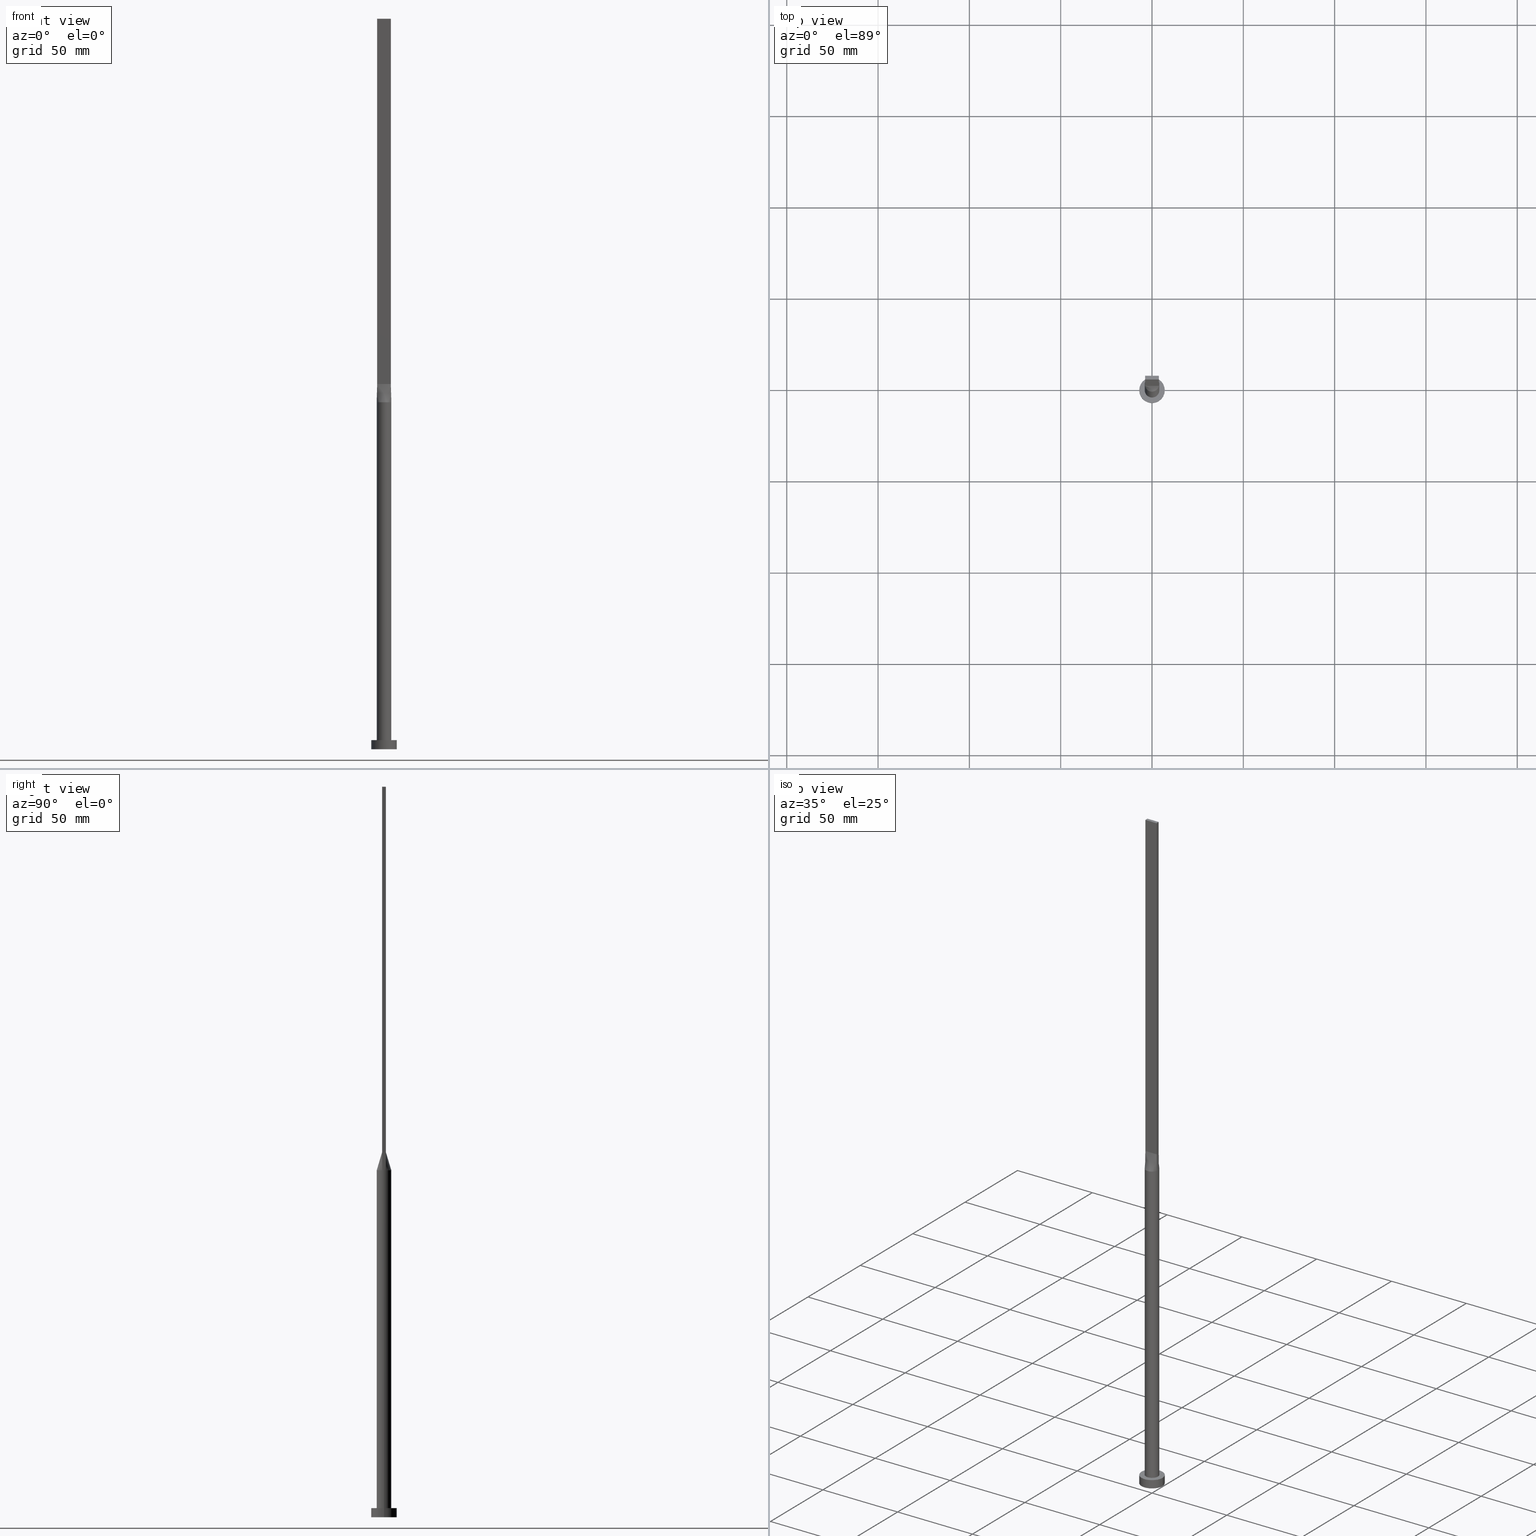
[diagram: canonical four-view strip — front | top / right | iso, engineering-drawing reading convention]
A machine part, canonical four-view strip (front | top / right | iso — engineering-drawing reading convention). The complete STEP part file that produces these views, byte-faithful:
ISO-10303-21;
HEADER;
FILE_DESCRIPTION (( 'STEP AP203' ),
    '1' );
FILE_NAME ('7f38.STEP',
    '2023-02-13T09:53:34',
    ( '' ),
    ( '' ),
    'SwSTEP 2.0',
    'SolidWorks 2019',
    '' );
FILE_SCHEMA (( 'CONFIG_CONTROL_DESIGN' ));
ENDSEC;

DATA;
#1 = PLANE ( 'NONE',  #343 ) ;
#2 = ORIENTED_EDGE ( 'NONE', *, *, #90, .F. ) ;
#3 = FACE_OUTER_BOUND ( 'NONE', #485, .T. ) ;
#4 = PERSON_AND_ORGANIZATION_ROLE ( 'creator' ) ;
#5 = DIRECTION ( 'NONE',  ( -1.000000000000000000, 0.000000000000000000, 0.000000000000000000 ) ) ;
#6 = CARTESIAN_POINT ( 'NONE',  ( 3.750000000000000000, 1.000000000000000000, 400.0000000000000000 ) ) ;
#7 = ORIENTED_EDGE ( 'NONE', *, *, #487, .T. ) ;
#8 = CARTESIAN_POINT ( 'NONE',  ( 3.781952206537765981, -1.341853921743404232, 190.0000000000000568 ) ) ;
#9 = ORIENTED_EDGE ( 'NONE', *, *, #189, .T. ) ;
#10 = DIRECTION ( 'NONE',  ( 0.000000000000000000, 0.000000000000000000, 1.000000000000000000 ) ) ;
#11 = CC_DESIGN_DATE_AND_TIME_ASSIGNMENT ( #171, #42, ( #199 ) ) ;
#12 = DIRECTION ( 'NONE',  ( -0.000000000000000000, -0.000000000000000000, -1.000000000000000000 ) ) ;
#13 = CARTESIAN_POINT ( 'NONE',  ( 4.000000000000000000, -0.3494497975066829798, 190.0000000000000000 ) ) ;
#14 = EDGE_LOOP ( 'NONE', ( #222, #9, #397, #380 ) ) ;
#15 = VECTOR ( 'NONE', #444, 1000.000000000000000 ) ;
#16 = LINE ( 'NONE', #434, #26 ) ;
#17 = COORDINATED_UNIVERSAL_TIME_OFFSET ( 1, 0, .AHEAD. ) ;
#18 = EDGE_LOOP ( 'NONE', ( #67, #551, #515, #251, #283 ) ) ;
#19 = VERTEX_POINT ( 'NONE', #92 ) ;
#20 = EDGE_CURVE ( 'NONE', #579, #425, #419, .T. ) ;
#21 = CARTESIAN_POINT ( 'NONE',  ( 3.009488128496037085, 2.672487015486669115, 190.0000000000000284 ) ) ;
#22 = EDGE_LOOP ( 'NONE', ( #97, #307, #469, #63 ) ) ;
#23 = CARTESIAN_POINT ( 'NONE',  ( 0.3124999999999993339, 1.000000000000000000, 200.0000000000000284 ) ) ;
#24 = APPROVAL_PERSON_ORGANIZATION ( #534, #501, #130 ) ;
#25 = VERTEX_POINT ( 'NONE', #497 ) ;
#26 = VECTOR ( 'NONE', #436, 1000.000000000000000 ) ;
#27 = LINE ( 'NONE', #386, #452 ) ;
#28 = LOCAL_TIME ( 10, 53, 34.00000000000000000, #36 ) ;
#29 = DIRECTION ( 'NONE',  ( -0.000000000000000000, 1.000000000000000000, -0.000000000000000000 ) ) ;
#30 = APPROVAL ( #482, 'NEUR�EN�' ) ;
#31 = CARTESIAN_POINT ( 'NONE',  ( 1.249999999999999334, 1.000000000000000000, 200.0000000000000284 ) ) ;
#32 = EDGE_CURVE ( 'NONE', #19, #69, #137, .T. ) ;
#33 = VECTOR ( 'NONE', #404, 1000.000000000000114 ) ;
#34 = FACE_OUTER_BOUND ( 'NONE', #321, .T. ) ;
#35 = CARTESIAN_POINT ( 'NONE',  ( -3.124999999999999112, -0.9999999999999991118, 200.0000000000000000 ) ) ;
#36 = COORDINATED_UNIVERSAL_TIME_OFFSET ( 1, 0, .AHEAD. ) ;
#37 = CARTESIAN_POINT ( 'NONE',  ( 0.000000000000000000, 0.000000000000000000, 0.000000000000000000 ) ) ;
#38 = APPROVAL_ROLE ( '' ) ;
#39 = VECTOR ( 'NONE', #29, 1000.000000000000000 ) ;
#40 = ADVANCED_FACE ( 'NONE', ( #151, #329 ), #1, .T. ) ;
#41 = PRODUCT_DEFINITION_FORMATION_WITH_SPECIFIED_SOURCE ( 'LIBOVOLN�', '', #49, .NOT_KNOWN. ) ;
#42 = DATE_TIME_ROLE ( 'creation_date' ) ;
#43 = ADVANCED_FACE ( 'NONE', ( #176 ), #230, .T. ) ;
#44 = CARTESIAN_POINT ( 'NONE',  ( 7.000000000000000000, 8.572527594031473190E-16, 0.000000000000000000 ) ) ;
#45 = ORIENTED_EDGE ( 'NONE', *, *, #529, .F. ) ;
#46 = ORIENTED_EDGE ( 'NONE', *, *, #259, .T. ) ;
#47 = EDGE_CURVE ( 'NONE', #93, #493, #83, .T. ) ;
#48 = DIRECTION ( 'NONE',  ( -1.000000000000000000, 0.000000000000000000, 0.000000000000000000 ) ) ;
#49 = PRODUCT ( '7f38', '7f38', '', ( #311 ) ) ;
#50 = ORIENTED_EDGE ( 'NONE', *, *, #529, .T. ) ;
#51 = DIRECTION ( 'NONE',  ( -0.01149316269309399140, 0.003064843384825013256, 0.9999292544707033548 ) ) ;
#52 = ORIENTED_EDGE ( 'NONE', *, *, #265, .T. ) ;
#53 = CARTESIAN_POINT ( 'NONE',  ( 3.653499896451230633, -1.673258289339059068, 190.0000000000000284 ) ) ;
#54 = CARTESIAN_POINT ( 'NONE',  ( -3.750000000000000000, 1.000000000000000000, 200.0000000000000000 ) ) ;
#55 = CIRCLE ( 'NONE', #209, 4.000000000000000000 ) ;
#56 = AXIS2_PLACEMENT_3D ( 'NONE', #577, #391, #213 ) ;
#57 = CARTESIAN_POINT ( 'NONE',  ( -3.750000000000000000, 1.000000000000000000, 200.0000000000000000 ) ) ;
#58 = COORDINATED_UNIVERSAL_TIME_OFFSET ( 1, 0, .AHEAD. ) ;
#59 = CARTESIAN_POINT ( 'NONE',  ( 3.781952206537764205, 1.341853921743403788, 190.0000000000000000 ) ) ;
#60 = DIRECTION ( 'NONE',  ( 1.000000000000000000, 0.000000000000000000, 0.000000000000000000 ) ) ;
#61 = FACE_OUTER_BOUND ( 'NONE', #18, .T. ) ;
#62 = CARTESIAN_POINT ( 'NONE',  ( 1.562500000000001332, -0.9999999999999995559, 200.0000000000000000 ) ) ;
#63 = ORIENTED_EDGE ( 'NONE', *, *, #389, .T. ) ;
#64 = CARTESIAN_POINT ( 'NONE',  ( -3.750000000000000000, 1.000000000000000000, 200.0000000000000000 ) ) ;
#65 = ORIENTED_EDGE ( 'NONE', *, *, #295, .T. ) ;
#66 = CARTESIAN_POINT ( 'NONE',  ( -3.781952206537765537, 1.341853921743403788, 190.0000000000000568 ) ) ;
#67 = ORIENTED_EDGE ( 'NONE', *, *, #580, .T. ) ;
#68 = DIRECTION ( 'NONE',  ( -0.000000000000000000, -0.000000000000000000, -1.000000000000000000 ) ) ;
#69 = VERTEX_POINT ( 'NONE', #54 ) ;
#70 = SHAPE_DEFINITION_REPRESENTATION ( #263, #516 ) ;
#71 = ADVANCED_FACE ( 'NONE', ( #410 ), #541, .T. ) ;
#72 = CARTESIAN_POINT ( 'NONE',  ( 3.267840578657193795, 2.338604872288698289, 190.0000000000000568 ) ) ;
#73 = LINE ( 'NONE', #198, #127 ) ;
#74 = LINE ( 'NONE', #517, #511 ) ;
#75 = CC_DESIGN_APPROVAL ( #30, ( #199 ) ) ;
#76 = VECTOR ( 'NONE', #12, 1000.000000000000000 ) ;
#77 = CARTESIAN_POINT ( 'NONE',  ( -3.864939758404985604, -1.030650602241328428, 190.0000000000000000 ) ) ;
#78 = CIRCLE ( 'NONE', #280, 4.000000000000000000 ) ;
#79 = CARTESIAN_POINT ( 'NONE',  ( -0.5121855420560009753, 4.000000000000000888, 190.0000000000000284 ) ) ;
#80 = LINE ( 'NONE', #64, #499 ) ;
#81 = EDGE_CURVE ( 'NONE', #219, #538, #297, .T. ) ;
#82 = FACE_OUTER_BOUND ( 'NONE', #272, .T. ) ;
#83 = CIRCLE ( 'NONE', #87, 4.000000000000000000 ) ;
#84 = CARTESIAN_POINT ( 'NONE',  ( 1.023074425454087555, -3.898373771260455811, 190.0000000000000000 ) ) ;
#85 = CARTESIAN_POINT ( 'NONE',  ( -3.750000000000000000, -0.9999999999999991118, 200.0000000000000000 ) ) ;
#86 = CALENDAR_DATE ( 2023, 13, 2 ) ;
#87 = AXIS2_PLACEMENT_3D ( 'NONE', #450, #542, #281 ) ;
#88 = CYLINDRICAL_SURFACE ( 'NONE', #481, 7.000000000000000000 ) ;
#89 = DIRECTION ( 'NONE',  ( 1.000000000000000000, 0.000000000000000000, -0.000000000000000000 ) ) ;
#90 = EDGE_CURVE ( 'NONE', #425, #197, #155, .T. ) ;
#91 = PLANE ( 'NONE',  #384 ) ;
#92 = CARTESIAN_POINT ( 'NONE',  ( -3.865236553917747120, 1.030730781768519622, 190.0000000000000000 ) ) ;
#93 = VERTEX_POINT ( 'NONE', #296 ) ;
#94 = DIRECTION ( 'NONE',  ( -0.01149316269309394803, -0.003064843384824991138, 0.9999292544707033548 ) ) ;
#95 = ORIENTED_EDGE ( 'NONE', *, *, #339, .F. ) ;
#96 = CARTESIAN_POINT ( 'NONE',  ( -1.023074425454088221, 3.898373771260455811, 190.0000000000000000 ) ) ;
#97 = ORIENTED_EDGE ( 'NONE', *, *, #124, .T. ) ;
#98 = DIRECTION ( 'NONE',  ( 0.000000000000000000, 0.000000000000000000, 1.000000000000000000 ) ) ;
#99 = CARTESIAN_POINT ( 'NONE',  ( 0.000000000000000000, 0.000000000000000000, 5.000000000000000000 ) ) ;
#100 = SECURITY_CLASSIFICATION ( '', '', #363 ) ;
#101 = CARTESIAN_POINT ( 'NONE',  ( 1.023074425454087999, 3.898373771260456255, 190.0000000000000284 ) ) ;
#102 = ORIENTED_EDGE ( 'NONE', *, *, #573, .T. ) ;
#103 = CARTESIAN_POINT ( 'NONE',  ( 0.000000000000000000, 0.000000000000000000, 190.0000000000000000 ) ) ;
#104 = CARTESIAN_POINT ( 'NONE',  ( 0.000000000000000000, 0.000000000000000000, 5.000000000000000000 ) ) ;
#105 = CARTESIAN_POINT ( 'NONE',  ( 0.000000000000000000, 0.000000000000000000, 190.0000000000000000 ) ) ;
#106 = VERTEX_POINT ( 'NONE', #523 ) ;
#107 = CARTESIAN_POINT ( 'NONE',  ( -3.750000000000000000, 1.000000000000000000, 400.0000000000000000 ) ) ;
#108 = CARTESIAN_POINT ( 'NONE',  ( -3.009488128496037529, 2.672487015486668671, 189.9999999999999716 ) ) ;
#109 = PERSON ( 'NEUR�EN�', 'NEUR�EN�', 'NEUR�EN�', ('NEUR�EN�'), ('NEUR�EN�'), ('NEUR�EN�') ) ;
#110 = CARTESIAN_POINT ( 'NONE',  ( 0.000000000000000000, 0.000000000000000000, 190.0000000000000000 ) ) ;
#111 = ORIENTED_EDGE ( 'NONE', *, *, #112, .T. ) ;
#112 = EDGE_CURVE ( 'NONE', #548, #106, #467, .T. ) ;
#113 = DESIGN_CONTEXT ( 'detailed design', #483, 'design' ) ;
#114 = DIRECTION ( 'NONE',  ( -0.000000000000000000, -0.000000000000000000, -1.000000000000000000 ) ) ;
#115 = CC_DESIGN_PERSON_AND_ORGANIZATION_ASSIGNMENT ( #306, #264, ( #199 ) ) ;
#116 = CARTESIAN_POINT ( 'NONE',  ( -3.653499896451231521, 1.673258289339058180, 190.0000000000000284 ) ) ;
#117 = VECTOR ( 'NONE', #387, 1000.000000000000000 ) ;
#118 = CARTESIAN_POINT ( 'NONE',  ( 7.000000000000000000, 8.572527594031473190E-16, 5.000000000000000000 ) ) ;
#119 = CARTESIAN_POINT ( 'NONE',  ( -3.750000000000000000, 1.000000000000000000, 200.0000000000000000 ) ) ;
#120 = LOCAL_TIME ( 10, 53, 34.00000000000000000, #17 ) ;
#121 = CARTESIAN_POINT ( 'NONE',  ( -2.187499999999999112, -0.9999999999999993339, 200.0000000000000000 ) ) ;
#122 = ADVANCED_FACE ( 'NONE', ( #249 ), #254, .F. ) ;
#123 = CARTESIAN_POINT ( 'NONE',  ( -1.940702937457744692, -3.532374760555929250, 190.0000000000000000 ) ) ;
#124 = EDGE_CURVE ( 'NONE', #465, #579, #158, .T. ) ;
#125 = DIRECTION ( 'NONE',  ( 1.000000000000000000, 0.000000000000000000, -0.000000000000000000 ) ) ;
#126 = CARTESIAN_POINT ( 'NONE',  ( -1.023074425454088887, -3.898373771260456255, 190.0000000000000284 ) ) ;
#127 = VECTOR ( 'NONE', #68, 1000.000000000000000 ) ;
#128 = VECTOR ( 'NONE', #256, 1000.000000000000000 ) ;
#129 = APPROVAL_DATE_TIME ( #215, #30 ) ;
#130 = APPROVAL_ROLE ( '' ) ;
#131 = LINE ( 'NONE', #362, #76 ) ;
#132 = EDGE_CURVE ( 'NONE', #425, #147, #74, .T. ) ;
#133 = ORIENTED_EDGE ( 'NONE', *, *, #81, .F. ) ;
#134 = CARTESIAN_POINT ( 'NONE',  ( 3.864939758404985604, -1.030650602241328873, 190.0000000000000000 ) ) ;
#135 = ORIENTED_EDGE ( 'NONE', *, *, #555, .F. ) ;
#136 = CARTESIAN_POINT ( 'NONE',  ( -3.864939758404985160, 1.030650602241329317, 190.0000000000000000 ) ) ;
#137 = LINE ( 'NONE', #375, #33 ) ;
#138 = DIRECTION ( 'NONE',  ( 0.000000000000000000, 0.000000000000000000, 1.000000000000000000 ) ) ;
#139 = CARTESIAN_POINT ( 'NONE',  ( 0.000000000000000000, 0.000000000000000000, 5.000000000000000000 ) ) ;
#140 = DATE_AND_TIME ( #409, #120 ) ;
#141 = VERTEX_POINT ( 'NONE', #430 ) ;
#142 = CARTESIAN_POINT ( 'NONE',  ( 3.750000000000000000, -0.9999999999999997780, 400.0000000000000000 ) ) ;
#143 = ORIENTED_EDGE ( 'NONE', *, *, #544, .F. ) ;
#144 = EDGE_CURVE ( 'NONE', #147, #548, #568, .T. ) ;
#145 = DIRECTION ( 'NONE',  ( 1.000000000000000000, 0.000000000000000000, 0.000000000000000000 ) ) ;
#146 = LOCAL_TIME ( 10, 53, 34.00000000000000000, #58 ) ;
#147 = VERTEX_POINT ( 'NONE', #85 ) ;
#148 = CARTESIAN_POINT ( 'NONE',  ( -3.750000000000000000, 1.000000000000000000, 400.0000000000000000 ) ) ;
#149 = CARTESIAN_POINT ( 'NONE',  ( 2.346407003458400808, 3.270103945996944983, 190.0000000000000284 ) ) ;
#150 = ORIENTED_EDGE ( 'NONE', *, *, #437, .T. ) ;
#151 = FACE_BOUND ( 'NONE', #269, .T. ) ;
#152 = DIRECTION ( 'NONE',  ( 1.000000000000000000, -6.217248937900876626E-15, 0.000000000000000000 ) ) ;
#153 = ORIENTED_EDGE ( 'NONE', *, *, #124, .F. ) ;
#154 = PLANE ( 'NONE',  #246 ) ;
#155 = LINE ( 'NONE', #512, #371 ) ;
#156 = ADVANCED_FACE ( 'NONE', ( #34 ), #402, .T. ) ;
#157 = CARTESIAN_POINT ( 'NONE',  ( 3.750000000000000000, -1.000000000000000000, 200.0000000000000000 ) ) ;
#158 = LINE ( 'NONE', #507, #175 ) ;
#159 = AXIS2_PLACEMENT_3D ( 'NONE', #581, #358, #177 ) ;
#160 = CARTESIAN_POINT ( 'NONE',  ( 2.499999999999999112, 1.000000000000000000, 200.0000000000000000 ) ) ;
#161 = CARTESIAN_POINT ( 'NONE',  ( -2.500000000000000444, 1.000000000000000000, 200.0000000000000000 ) ) ;
#162 = DIRECTION ( 'NONE',  ( -0.000000000000000000, -0.000000000000000000, -1.000000000000000000 ) ) ;
#163 = ORIENTED_EDGE ( 'NONE', *, *, #81, .T. ) ;
#164 = LINE ( 'NONE', #527, #475 ) ;
#165 = CARTESIAN_POINT ( 'NONE',  ( -3.267840578657194239, -2.338604872288696956, 190.0000000000000568 ) ) ;
#166 = APPLICATION_PROTOCOL_DEFINITION ( 'international standard', 'config_control_design', 1994, #459 ) ;
#167 = EDGE_CURVE ( 'NONE', #237, #276, #309, .T. ) ;
#168 = VECTOR ( 'NONE', #51, 1000.000000000000114 ) ;
#169 = CC_DESIGN_APPROVAL ( #435, ( #100 ) ) ;
#170 = CARTESIAN_POINT ( 'NONE',  ( -3.653499896451231521, -1.673258289339057514, 189.9999999999999716 ) ) ;
#171 = DATE_AND_TIME ( #393, #552 ) ;
#172 = DIRECTION ( 'NONE',  ( -1.000000000000000000, 0.000000000000000000, 0.000000000000000000 ) ) ;
#173 = CALENDAR_DATE ( 2023, 13, 2 ) ;
#174 = CARTESIAN_POINT ( 'NONE',  ( 0.000000000000000000, 0.000000000000000000, 0.000000000000000000 ) ) ;
#175 = VECTOR ( 'NONE', #474, 1000.000000000000000 ) ;
#176 = FACE_OUTER_BOUND ( 'NONE', #271, .T. ) ;
#177 = DIRECTION ( 'NONE',  ( 1.000000000000000000, 0.000000000000000000, 0.000000000000000000 ) ) ;
#178 = ORIENTED_EDGE ( 'NONE', *, *, #495, .F. ) ;
#179 = CARTESIAN_POINT ( 'NONE',  ( 1.940702937457743360, -3.532374760555930582, 190.0000000000000284 ) ) ;
#180 = PLANE ( 'NONE',  #533 ) ;
#181 = EDGE_CURVE ( 'NONE', #364, #106, #239, .T. ) ;
#182 = ORIENTED_EDGE ( 'NONE', *, *, #478, .T. ) ;
#183 = CARTESIAN_POINT ( 'NONE',  ( -3.953459813730019423, 0.6987003947724497177, 189.9999999999999716 ) ) ;
#184 = PERSON_AND_ORGANIZATION_ROLE ( 'design_supplier' ) ;
#185 = DIRECTION ( 'NONE',  ( 1.000000000000000000, 0.000000000000000000, 0.000000000000000000 ) ) ;
#186 = VECTOR ( 'NONE', #94, 1000.000000000000114 ) ;
#187 = CARTESIAN_POINT ( 'NONE',  ( 3.009488128496037085, 2.672487015486669115, 190.0000000000000284 ) ) ;
#188 = ORIENTED_EDGE ( 'NONE', *, *, #144, .T. ) ;
#189 = EDGE_CURVE ( 'NONE', #326, #237, #460, .T. ) ;
#190 = ORIENTED_EDGE ( 'NONE', *, *, #47, .F. ) ;
#191 = DIRECTION ( 'NONE',  ( 0.000000000000000000, -1.000000000000000000, 0.000000000000000000 ) ) ;
#192 = FACE_OUTER_BOUND ( 'NONE', #241, .T. ) ;
#193 = ORIENTED_EDGE ( 'NONE', *, *, #555, .T. ) ;
#194 = ADVANCED_FACE ( 'NONE', ( #3 ), #316, .T. ) ;
#195 = CARTESIAN_POINT ( 'NONE',  ( -3.009488128496037529, 2.672487015486668671, 189.9999999999999716 ) ) ;
#196 = CARTESIAN_POINT ( 'NONE',  ( 3.267840578657193795, 2.338604872288698289, 190.0000000000000568 ) ) ;
#197 = VERTEX_POINT ( 'NONE', #489 ) ;
#198 = CARTESIAN_POINT ( 'NONE',  ( -4.000000000000000000, 0.000000000000000000, 190.0000000000000000 ) ) ;
#199 = PRODUCT_DEFINITION ( 'NEZN�M�', '', #41, #113 ) ;
#200 = DIRECTION ( 'NONE',  ( 1.000000000000000000, 0.000000000000000000, -0.000000000000000000 ) ) ;
#201 = CARTESIAN_POINT ( 'NONE',  ( 3.864939758404985160, 1.030650602241328873, 190.0000000000000000 ) ) ;
#202 = CARTESIAN_POINT ( 'NONE',  ( -1.023074425454088221, 3.898373771260455811, 190.0000000000000000 ) ) ;
#203 = LINE ( 'NONE', #471, #128 ) ;
#204 = LOCAL_TIME ( 10, 53, 34.00000000000000000, #396 ) ;
#205 = CARTESIAN_POINT ( 'NONE',  ( -3.750000000000000000, -0.9999999999999991118, 200.0000000000000000 ) ) ;
#206 = CARTESIAN_POINT ( 'NONE',  ( 1.023074425454087999, 3.898373771260456255, 190.0000000000000284 ) ) ;
#207 = DIRECTION ( 'NONE',  ( -0.01149316269309399140, -0.003064843384825013256, -0.9999292544707033548 ) ) ;
#208 = CARTESIAN_POINT ( 'NONE',  ( -3.437499999999999556, -0.9999999999999991118, 200.0000000000000000 ) ) ;
#209 = AXIS2_PLACEMENT_3D ( 'NONE', #448, #284, #408 ) ;
#210 = CARTESIAN_POINT ( 'NONE',  ( -2.346407003458402141, -3.270103945996943651, 190.0000000000000284 ) ) ;
#211 = ADVANCED_FACE ( 'NONE', ( #535 ), #88, .T. ) ;
#212 = CARTESIAN_POINT ( 'NONE',  ( 0.6250000000000017764, -0.9999999999999995559, 200.0000000000000000 ) ) ;
#213 = DIRECTION ( 'NONE',  ( 1.000000000000000000, 0.000000000000000000, 0.000000000000000000 ) ) ;
#214 = AXIS2_PLACEMENT_3D ( 'NONE', #110, #463, #299 ) ;
#215 = DATE_AND_TIME ( #86, #28 ) ;
#216 = AXIS2_PLACEMENT_3D ( 'NONE', #105, #376, #152 ) ;
#217 = CARTESIAN_POINT ( 'NONE',  ( -3.864939758404985604, -1.030650602241328206, 190.0000000000000000 ) ) ;
#218 = APPROVAL_STATUS ( 'not_yet_approved' ) ;
#219 = VERTEX_POINT ( 'NONE', #545 ) ;
#220 = CARTESIAN_POINT ( 'NONE',  ( 3.125000000000000444, -0.9999999999999995559, 200.0000000000000000 ) ) ;
#221 = ORIENTED_EDGE ( 'NONE', *, *, #359, .F. ) ;
#222 = ORIENTED_EDGE ( 'NONE', *, *, #478, .F. ) ;
#223 = ADVANCED_FACE ( 'NONE', ( #441 ), #413, .T. ) ;
#224 = DIRECTION ( 'NONE',  ( 1.000000000000000000, 0.000000000000000000, -0.000000000000000000 ) ) ;
#225 = DIRECTION ( 'NONE',  ( 0.000000000000000000, 0.000000000000000000, 1.000000000000000000 ) ) ;
#226 = ORIENTED_EDGE ( 'NONE', *, *, #47, .T. ) ;
#227 = DIRECTION ( 'NONE',  ( -0.000000000000000000, -0.000000000000000000, -1.000000000000000000 ) ) ;
#228 = AXIS2_PLACEMENT_3D ( 'NONE', #139, #492, #273 ) ;
#229 = VECTOR ( 'NONE', #335, 1000.000000000000000 ) ;
#230 = CYLINDRICAL_SURFACE ( 'NONE', #549, 7.000000000000000000 ) ;
#231 = CARTESIAN_POINT ( 'NONE',  ( 3.807469879202492802, -1.015325301120664214, 195.0000000000000000 ) ) ;
#232 = ORIENTED_EDGE ( 'NONE', *, *, #32, .F. ) ;
#233 = CARTESIAN_POINT ( 'NONE',  ( 3.009488128496036641, -2.672487015486668671, 189.9999999999999716 ) ) ;
#234 = APPROVAL_STATUS ( 'not_yet_approved' ) ;
#235 = ORIENTED_EDGE ( 'NONE', *, *, #508, .F. ) ;
#236 = CARTESIAN_POINT ( 'NONE',  ( 0.000000000000000000, 0.000000000000000000, 190.0000000000000000 ) ) ;
#237 = VERTEX_POINT ( 'NONE', #44 ) ;
#238 = MANIFOLD_SOLID_BREP ( 'P�idat vysunut�m5', #473 ) ;
#239 = LINE ( 'NONE', #486, #186 ) ;
#240 = CALENDAR_DATE ( 2023, 13, 2 ) ;
#241 = EDGE_LOOP ( 'NONE', ( #188, #556, #2, #446 ) ) ;
#242 = VECTOR ( 'NONE', #274, 1000.000000000000000 ) ;
#243 = ORIENTED_EDGE ( 'NONE', *, *, #580, .F. ) ;
#244 = CARTESIAN_POINT ( 'NONE',  ( -3.749999999999999556, 0.6666666666666668517, 200.0000000000000000 ) ) ;
#245 = CARTESIAN_POINT ( 'NONE',  ( 1.562499999999999112, 1.000000000000000000, 200.0000000000000284 ) ) ;
#246 = AXIS2_PLACEMENT_3D ( 'NONE', #426, #332, #472 ) ;
#247 = CARTESIAN_POINT ( 'NONE',  ( 3.749999999999999556, -0.6666666666666664076, 200.0000000000000000 ) ) ;
#248 = ORIENTED_EDGE ( 'NONE', *, *, #295, .F. ) ;
#249 = FACE_OUTER_BOUND ( 'NONE', #312, .T. ) ;
#250 =( NAMED_UNIT ( * ) SI_UNIT ( $, .STERADIAN. ) SOLID_ANGLE_UNIT ( ) );
#251 = ORIENTED_EDGE ( 'NONE', *, *, #112, .F. ) ;
#252 = CARTESIAN_POINT ( 'NONE',  ( 0.6249999999999993339, 1.000000000000000000, 200.0000000000000284 ) ) ;
#253 =( NAMED_UNIT ( * ) PLANE_ANGLE_UNIT ( ) SI_UNIT ( $, .RADIAN. ) );
#254 = PLANE ( 'NONE',  #522 ) ;
#255 = EDGE_CURVE ( 'NONE', #462, #326, #554, .T. ) ;
#256 = DIRECTION ( 'NONE',  ( -0.000000000000000000, -0.000000000000000000, -1.000000000000000000 ) ) ;
#257 = DIRECTION ( 'NONE',  ( -0.000000000000000000, -0.000000000000000000, -1.000000000000000000 ) ) ;
#258 = CARTESIAN_POINT ( 'NONE',  ( 0.5121855420560009753, 4.000000000000000888, 190.0000000000000000 ) ) ;
#259 = EDGE_CURVE ( 'NONE', #276, #237, #303, .T. ) ;
#260 = PLANE ( 'NONE',  #572 ) ;
#261 = PERSON_AND_ORGANIZATION ( #109, #304 ) ;
#262 = DIRECTION ( 'NONE',  ( -1.000000000000000000, 0.000000000000000000, 0.000000000000000000 ) ) ;
#263 = PRODUCT_DEFINITION_SHAPE ( 'NONE', 'NONE',  #199 ) ;
#264 = PERSON_AND_ORGANIZATION_ROLE ( 'creator' ) ;
#265 = EDGE_CURVE ( 'NONE', #579, #69, #131, .T. ) ;
#266 = VECTOR ( 'NONE', #207, 1000.000000000000114 ) ;
#267 = ORIENTED_EDGE ( 'NONE', *, *, #20, .F. ) ;
#268 = CARTESIAN_POINT ( 'NONE',  ( 0.000000000000000000, 0.000000000000000000, 5.000000000000000000 ) ) ;
#269 = EDGE_LOOP ( 'NONE', ( #248, #190 ) ) ;
#270 = CC_DESIGN_DATE_AND_TIME_ASSIGNMENT ( #442, #314, ( #100 ) ) ;
#271 = EDGE_LOOP ( 'NONE', ( #417, #445, #491, #46 ) ) ;
#272 = EDGE_LOOP ( 'NONE', ( #336, #451 ) ) ;
#273 = DIRECTION ( 'NONE',  ( 1.000000000000000000, 0.000000000000000000, 0.000000000000000000 ) ) ;
#274 = DIRECTION ( 'NONE',  ( 0.000000000000000000, -1.000000000000000000, 0.000000000000000000 ) ) ;
#275 = CARTESIAN_POINT ( 'NONE',  ( -3.653499896451231521, 1.673258289339058180, 190.0000000000000284 ) ) ;
#276 = VERTEX_POINT ( 'NONE', #537 ) ;
#277 = CC_DESIGN_SECURITY_CLASSIFICATION ( #100, ( #41 ) ) ;
#278 = FACE_OUTER_BOUND ( 'NONE', #574, .T. ) ;
#279 = APPROVAL_DATE_TIME ( #536, #501 ) ;
#280 = AXIS2_PLACEMENT_3D ( 'NONE', #411, #10, #60 ) ;
#281 = DIRECTION ( 'NONE',  ( 1.000000000000000000, 0.000000000000000000, 0.000000000000000000 ) ) ;
#282 = CARTESIAN_POINT ( 'NONE',  ( -3.865236553917747120, 1.030730781768519622, 190.0000000000000000 ) ) ;
#283 = ORIENTED_EDGE ( 'NONE', *, *, #487, .F. ) ;
#284 = DIRECTION ( 'NONE',  ( 0.000000000000000000, 0.000000000000000000, 1.000000000000000000 ) ) ;
#285 = ORIENTED_EDGE ( 'NONE', *, *, #382, .T. ) ;
#286 = CARTESIAN_POINT ( 'NONE',  ( -1.940702937457743138, 3.532374760555930582, 190.0000000000000284 ) ) ;
#287 = CARTESIAN_POINT ( 'NONE',  ( -1.940702937457743138, 3.532374760555930582, 190.0000000000000284 ) ) ;
#288 = CARTESIAN_POINT ( 'NONE',  ( -3.267840578657194239, 2.338604872288698289, 190.0000000000000284 ) ) ;
#289 = ORIENTED_EDGE ( 'NONE', *, *, #265, .F. ) ;
#290 = CARTESIAN_POINT ( 'NONE',  ( -3.781952206537765537, 1.341853921743403788, 190.0000000000000568 ) ) ;
#291 = CARTESIAN_POINT ( 'NONE',  ( 3.953459813730020311, 0.6987003947724492736, 190.0000000000000000 ) ) ;
#292 = CARTESIAN_POINT ( 'NONE',  ( -3.953459813730020311, -0.6987003947724488295, 190.0000000000000000 ) ) ;
#293 = CARTESIAN_POINT ( 'NONE',  ( 1.940702937457743582, 3.532374760555930582, 190.0000000000000000 ) ) ;
#294 = CARTESIAN_POINT ( 'NONE',  ( 3.750000000000000000, 1.000000000000000000, 200.0000000000000000 ) ) ;
#295 = EDGE_CURVE ( 'NONE', #493, #93, #55, .T. ) ;
#296 = CARTESIAN_POINT ( 'NONE',  ( 4.000000000000000000, 4.898587196589412829E-16, 5.000000000000000000 ) ) ;
#297 = CIRCLE ( 'NONE', #214, 4.000000000000000000 ) ;
#298 = AXIS2_PLACEMENT_3D ( 'NONE', #236, #415, #185 ) ;
#299 = DIRECTION ( 'NONE',  ( 1.000000000000000000, 0.000000000000000000, 0.000000000000000000 ) ) ;
#300 = ADVANCED_FACE ( 'NONE', ( #318 ), #91, .F. ) ;
#301 = LINE ( 'NONE', #349, #488 ) ;
#302 = CARTESIAN_POINT ( 'NONE',  ( 0.3125000000000018319, -0.9999999999999995559, 200.0000000000000284 ) ) ;
#303 = CIRCLE ( 'NONE', #159, 7.000000000000000000 ) ;
#304 = ORGANIZATION ( 'NEUR�EN�', 'NEUR�EN�', '' ) ;
#305 = CARTESIAN_POINT ( 'NONE',  ( 0.000000000000000000, 0.000000000000000000, 190.0000000000000000 ) ) ;
#306 = PERSON_AND_ORGANIZATION ( #109, #304 ) ;
#307 = ORIENTED_EDGE ( 'NONE', *, *, #20, .T. ) ;
#308 = ADVANCED_FACE ( 'NONE', ( #278 ), #447, .T. ) ;
#309 = CIRCLE ( 'NONE', #440, 7.000000000000000000 ) ;
#310 = CARTESIAN_POINT ( 'NONE',  ( 7.000000000000000000, 8.572527594031473190E-16, 5.000000000000000000 ) ) ;
#311 = MECHANICAL_CONTEXT ( 'NONE', #459, 'mechanical' ) ;
#312 = EDGE_LOOP ( 'NONE', ( #193, #361, #267, #52 ) ) ;
#313 = CARTESIAN_POINT ( 'NONE',  ( 2.187500000000000888, -0.9999999999999995559, 200.0000000000000000 ) ) ;
#314 = DATE_TIME_ROLE ( 'classification_date' ) ;
#315 = ADVANCED_FACE ( 'NONE', ( #559 ), #154, .F. ) ;
#316 = CYLINDRICAL_SURFACE ( 'NONE', #407, 4.000000000000000000 ) ;
#317 = CARTESIAN_POINT ( 'NONE',  ( 3.781952206537764205, 1.341853921743403788, 190.0000000000000000 ) ) ;
#318 = FACE_OUTER_BOUND ( 'NONE', #401, .T. ) ;
#319 = ORIENTED_EDGE ( 'NONE', *, *, #382, .F. ) ;
#320 = CARTESIAN_POINT ( 'NONE',  ( 0.000000000000000000, 0.000000000000000000, 190.0000000000000000 ) ) ;
#321 = EDGE_LOOP ( 'NONE', ( #102, #7, #563, #372 ) ) ;
#322 = CIRCLE ( 'NONE', #325, 4.000000000000000000 ) ;
#323 = CARTESIAN_POINT ( 'NONE',  ( 1.250000000000001554, -0.9999999999999995559, 200.0000000000000000 ) ) ;
#324 = AXIS2_PLACEMENT_3D ( 'NONE', #366, #356, #224 ) ;
#325 = AXIS2_PLACEMENT_3D ( 'NONE', #320, #138, #464 ) ;
#326 = VERTEX_POINT ( 'NONE', #118 ) ;
#327 = CARTESIAN_POINT ( 'NONE',  ( 3.864939758404985160, -1.030650602241329539, 190.0000000000000000 ) ) ;
#328 = ORIENTED_EDGE ( 'NONE', *, *, #560, .F. ) ;
#329 = FACE_OUTER_BOUND ( 'NONE', #331, .T. ) ;
#330 = CARTESIAN_POINT ( 'NONE',  ( -2.346407003458401253, 3.270103945996944095, 190.0000000000000000 ) ) ;
#331 = EDGE_LOOP ( 'NONE', ( #406, #182 ) ) ;
#332 = DIRECTION ( 'NONE',  ( 0.000000000000000000, -1.000000000000000000, 0.000000000000000000 ) ) ;
#333 = CARTESIAN_POINT ( 'NONE',  ( 2.346407003458400808, 3.270103945996944983, 190.0000000000000284 ) ) ;
#334 = CC_DESIGN_PERSON_AND_ORGANIZATION_ASSIGNMENT ( #506, #540, ( #100 ) ) ;
#335 = DIRECTION ( 'NONE',  ( -0.000000000000000000, -0.000000000000000000, -1.000000000000000000 ) ) ;
#336 = ORIENTED_EDGE ( 'NONE', *, *, #259, .F. ) ;
#337 = APPROVAL_DATE_TIME ( #140, #435 ) ;
#338 = CARTESIAN_POINT ( 'NONE',  ( -3.267840578657194239, 2.338604872288698289, 190.0000000000000284 ) ) ;
#339 = EDGE_CURVE ( 'NONE', #219, #493, #73, .T. ) ;
#340 = CARTESIAN_POINT ( 'NONE',  ( -3.999999999999999112, -0.3494497975066816475, 189.9999999999999432 ) ) ;
#341 = CARTESIAN_POINT ( 'NONE',  ( -3.125000000000000000, 1.000000000000000000, 200.0000000000000000 ) ) ;
#342 = CARTESIAN_POINT ( 'NONE',  ( -3.807469879202492802, -1.015325301120663548, 195.0000000000000000 ) ) ;
#343 = AXIS2_PLACEMENT_3D ( 'NONE', #104, #225, #89 ) ;
#344 = CARTESIAN_POINT ( 'NONE',  ( -1.249999999999998446, -0.9999999999999993339, 200.0000000000000284 ) ) ;
#345 = CARTESIAN_POINT ( 'NONE',  ( 3.750000000000000000, -0.9999999999999997780, 200.0000000000000000 ) ) ;
#346 = AXIS2_PLACEMENT_3D ( 'NONE', #305, #162, #262 ) ;
#347 = DIRECTION ( 'NONE',  ( -1.000000000000000000, -0.000000000000000000, -0.000000000000000000 ) ) ;
#348 = CARTESIAN_POINT ( 'NONE',  ( -3.750000000000000000, -0.9999999999999991118, 200.0000000000000000 ) ) ;
#349 = CARTESIAN_POINT ( 'NONE',  ( 3.750000000000000000, -0.9999999999999997780, 400.0000000000000000 ) ) ;
#350 = CARTESIAN_POINT ( 'NONE',  ( -2.499999999999998668, -0.9999999999999991118, 200.0000000000000000 ) ) ;
#351 = B_SPLINE_SURFACE_WITH_KNOTS ( 'NONE', 3, 1, ( 
 ( #327, #157 ),
 ( #416, #247 ),
 ( #13, #503 ),
 ( #424, #518 ),
 ( #291, #569 ),
 ( #201, #294 ) ),
 .UNSPECIFIED., .F., .F., .F.,
 ( 4, 2, 4 ),
 ( 2, 2 ),
 ( 0.000000000000000000, 0.5000000000000000000, 1.000000000000000000 ),
 ( 0.000000000000000000, 1.000000000000000000 ),
 .UNSPECIFIED. ) ;
#352 = CC_DESIGN_APPROVAL ( #501, ( #41 ) ) ;
#353 = EDGE_CURVE ( 'NONE', #462, #276, #27, .T. ) ;
#354 = CARTESIAN_POINT ( 'NONE',  ( -3.009488128496037529, -2.672487015486668227, 190.0000000000000284 ) ) ;
#355 = COORDINATED_UNIVERSAL_TIME_OFFSET ( 1, 0, .AHEAD. ) ;
#356 = DIRECTION ( 'NONE',  ( 0.000000000000000000, 0.000000000000000000, 1.000000000000000000 ) ) ;
#357 = ORIENTED_EDGE ( 'NONE', *, *, #181, .F. ) ;
#358 = DIRECTION ( 'NONE',  ( 0.000000000000000000, 0.000000000000000000, 1.000000000000000000 ) ) ;
#359 = EDGE_CURVE ( 'NONE', #465, #106, #16, .T. ) ;
#360 = DIRECTION ( 'NONE',  ( -0.000000000000000000, -0.000000000000000000, -1.000000000000000000 ) ) ;
#361 = ORIENTED_EDGE ( 'NONE', *, *, #132, .F. ) ;
#362 = CARTESIAN_POINT ( 'NONE',  ( -3.750000000000000000, 1.000000000000000000, 400.0000000000000000 ) ) ;
#363 = SECURITY_CLASSIFICATION_LEVEL ( 'unclassified' ) ;
#364 = VERTEX_POINT ( 'NONE', #433 ) ;
#365 = DIRECTION ( 'NONE',  ( 0.000000000000000000, 0.000000000000000000, 1.000000000000000000 ) ) ;
#366 = CARTESIAN_POINT ( 'NONE',  ( 0.000000000000000000, 0.000000000000000000, 400.0000000000000000 ) ) ;
#367 = CARTESIAN_POINT ( 'NONE',  ( 3.864939758404985160, 1.030650602241329539, 190.0000000000000000 ) ) ;
#368 = CARTESIAN_POINT ( 'NONE',  ( -3.750000000000000000, -0.9999999999999991118, 400.0000000000000000 ) ) ;
#369 = ORIENTED_EDGE ( 'NONE', *, *, #508, .T. ) ;
#370 = CARTESIAN_POINT ( 'NONE',  ( 2.500000000000000888, -0.9999999999999995559, 200.0000000000000000 ) ) ;
#371 = VECTOR ( 'NONE', #470, 1000.000000000000000 ) ;
#372 = ORIENTED_EDGE ( 'NONE', *, *, #544, .T. ) ;
#373 = LINE ( 'NONE', #142, #229 ) ;
#374 = ADVANCED_FACE ( 'NONE', ( #532 ), #571, .T. ) ;
#375 = CARTESIAN_POINT ( 'NONE',  ( -3.807469879202492802, 1.015325301120663992, 195.0000000000000000 ) ) ;
#376 = DIRECTION ( 'NONE',  ( 0.000000000000000000, 0.000000000000000000, 1.000000000000000000 ) ) ;
#377 = ORIENTED_EDGE ( 'NONE', *, *, #32, .T. ) ;
#378 = CARTESIAN_POINT ( 'NONE',  ( -3.750000000000000000, -0.9999999999999991118, 200.0000000000000000 ) ) ;
#379 = CARTESIAN_POINT ( 'NONE',  ( -3.437500000000000000, 1.000000000000000000, 200.0000000000000000 ) ) ;
#380 = ORIENTED_EDGE ( 'NONE', *, *, #353, .F. ) ;
#381 = DIRECTION ( 'NONE',  ( -0.000000000000000000, 0.000000000000000000, -1.000000000000000000 ) ) ;
#382 = EDGE_CURVE ( 'NONE', #106, #69, #164, .T. ) ;
#383 = CARTESIAN_POINT ( 'NONE',  ( -3.749999999999999556, -0.6666666666666658525, 200.0000000000000000 ) ) ;
#384 = AXIS2_PLACEMENT_3D ( 'NONE', #539, #496, #98 ) ;
#385 =( GEOMETRIC_REPRESENTATION_CONTEXT ( 3 ) GLOBAL_UNCERTAINTY_ASSIGNED_CONTEXT ( ( #576 ) ) GLOBAL_UNIT_ASSIGNED_CONTEXT ( ( #513, #253, #250 ) ) REPRESENTATION_CONTEXT ( 'NONE', 'WORKASPACE' ) );
#386 = CARTESIAN_POINT ( 'NONE',  ( -7.000000000000000000, 0.000000000000000000, 5.000000000000000000 ) ) ;
#387 = DIRECTION ( 'NONE',  ( 1.000000000000000000, -8.673617379884035472E-17, 0.000000000000000000 ) ) ;
#388 = CARTESIAN_POINT ( 'NONE',  ( -2.346407003458401253, 3.270103945996944095, 190.0000000000000000 ) ) ;
#389 = EDGE_CURVE ( 'NONE', #197, #465, #301, .T. ) ;
#390 = CARTESIAN_POINT ( 'NONE',  ( -0.6249999999999982236, -0.9999999999999993339, 200.0000000000000284 ) ) ;
#391 = DIRECTION ( 'NONE',  ( 0.000000000000000000, 0.000000000000000000, 1.000000000000000000 ) ) ;
#392 = ADVANCED_FACE ( 'NONE', ( #82 ), #260, .F. ) ;
#393 = CALENDAR_DATE ( 2023, 13, 2 ) ;
#394 = CIRCLE ( 'NONE', #216, 4.000000000000000000 ) ;
#395 = B_SPLINE_CURVE_WITH_KNOTS ( 'NONE', 3,
 ( #553, #317, #514, #196, #187, #149, #498, #101, #562, #557, #96, #286, #330, #108, #288, #275, #66, #282 ),
 .UNSPECIFIED., .F., .F.,
 ( 4, 2, 2, 2, 2, 2, 2, 2, 4 ),
 ( 0.000000000000000000, 0.1250000000000000000, 0.2500000000000000000, 0.3750000000000000000, 0.5000000000000000000, 0.6250000000000000000, 0.7500000000000000000, 0.8750000000000000000, 1.000000000000000000 ),
 .UNSPECIFIED. ) ;
#396 = COORDINATED_UNIVERSAL_TIME_OFFSET ( 1, 0, .AHEAD. ) ;
#397 = ORIENTED_EDGE ( 'NONE', *, *, #167, .T. ) ;
#398 = CARTESIAN_POINT ( 'NONE',  ( 3.267840578657194239, -2.338604872288699177, 190.0000000000000284 ) ) ;
#399 = PERSON_AND_ORGANIZATION ( #109, #304 ) ;
#400 = CARTESIAN_POINT ( 'NONE',  ( -3.750000000000000000, 1.000000000000000000, 400.0000000000000000 ) ) ;
#401 = EDGE_LOOP ( 'NONE', ( #111, #221, #510, #150 ) ) ;
#402 = B_SPLINE_SURFACE_WITH_KNOTS ( 'NONE', 3, 1, ( 
 ( #217, #348 ),
 ( #578, #208 ),
 ( #170, #35 ),
 ( #165, #350 ),
 ( #354, #121 ),
 ( #210, #531 ),
 ( #123, #344 ),
 ( #126, #390 ),
 ( #575, #526 ),
 ( #528, #302 ),
 ( #84, #212 ),
 ( #179, #323 ),
 ( #418, #62 ),
 ( #233, #313 ),
 ( #398, #370 ),
 ( #53, #220 ),
 ( #8, #454 ),
 ( #134, #403 ) ),
 .UNSPECIFIED., .F., .F., .F.,
 ( 4, 2, 2, 2, 2, 2, 2, 2, 4 ),
 ( 2, 2 ),
 ( 0.000000000000000000, 0.1250000000000000000, 0.2500000000000000000, 0.3750000000000000000, 0.5000000000000000000, 0.6250000000000000000, 0.7500000000000000000, 0.8750000000000000000, 1.000000000000000000 ),
 ( 0.000000000000000000, 1.000000000000000000 ),
 .UNSPECIFIED. ) ;
#403 = CARTESIAN_POINT ( 'NONE',  ( 3.750000000000000000, -0.9999999999999997780, 200.0000000000000000 ) ) ;
#404 = DIRECTION ( 'NONE',  ( 0.01149316269309399140, -0.003064843384824947770, 0.9999292544707033548 ) ) ;
#405 = DIRECTION ( 'NONE',  ( -1.000000000000000000, 8.673617379884035472E-17, 0.000000000000000000 ) ) ;
#406 = ORIENTED_EDGE ( 'NONE', *, *, #255, .T. ) ;
#407 = AXIS2_PLACEMENT_3D ( 'NONE', #103, #500, #48 ) ;
#408 = DIRECTION ( 'NONE',  ( 1.000000000000000000, 0.000000000000000000, 0.000000000000000000 ) ) ;
#409 = CALENDAR_DATE ( 2023, 13, 2 ) ;
#410 = FACE_OUTER_BOUND ( 'NONE', #458, .T. ) ;
#411 = CARTESIAN_POINT ( 'NONE',  ( 0.000000000000000000, 0.000000000000000000, 190.0000000000000000 ) ) ;
#412 = CARTESIAN_POINT ( 'NONE',  ( -7.000000000000000000, 0.000000000000000000, 5.000000000000000000 ) ) ;
#413 = PLANE ( 'NONE',  #324 ) ;
#414 = CARTESIAN_POINT ( 'NONE',  ( 3.437499999999999556, 1.000000000000000000, 200.0000000000000000 ) ) ;
#415 = DIRECTION ( 'NONE',  ( 0.000000000000000000, 0.000000000000000000, 1.000000000000000000 ) ) ;
#416 = CARTESIAN_POINT ( 'NONE',  ( 3.953459813730019423, -0.6987003947724502728, 189.9999999999999716 ) ) ;
#417 = ORIENTED_EDGE ( 'NONE', *, *, #189, .F. ) ;
#418 = CARTESIAN_POINT ( 'NONE',  ( 2.346407003458400364, -3.270103945996944095, 190.0000000000000000 ) ) ;
#419 = LINE ( 'NONE', #400, #242 ) ;
#420 = CARTESIAN_POINT ( 'NONE',  ( -3.750000000000000000, -0.9999999999999991118, 400.0000000000000000 ) ) ;
#421 = EDGE_LOOP ( 'NONE', ( #45, #243, #558, #133, #427, #65 ) ) ;
#422 = CC_DESIGN_PERSON_AND_ORGANIZATION_ASSIGNMENT ( #261, #480, ( #49 ) ) ;
#423 = CARTESIAN_POINT ( 'NONE',  ( -1.562500000000000444, 1.000000000000000000, 200.0000000000000000 ) ) ;
#424 = CARTESIAN_POINT ( 'NONE',  ( 3.999999999999999112, 0.3494497975066819251, 189.9999999999999432 ) ) ;
#425 = VERTEX_POINT ( 'NONE', #420 ) ;
#426 = CARTESIAN_POINT ( 'NONE',  ( 3.750000000000000000, 1.000000000000000000, 400.0000000000000000 ) ) ;
#427 = ORIENTED_EDGE ( 'NONE', *, *, #339, .T. ) ;
#428 = CARTESIAN_POINT ( 'NONE',  ( -0.3125000000000007216, 1.000000000000000000, 200.0000000000000284 ) ) ;
#429 = ORIENTED_EDGE ( 'NONE', *, *, #560, .T. ) ;
#430 = CARTESIAN_POINT ( 'NONE',  ( 3.865244591400370577, -1.030732999276501527, 190.0000000000000000 ) ) ;
#431 = APPROVAL_PERSON_ORGANIZATION ( #490, #435, #449 ) ;
#432 = CARTESIAN_POINT ( 'NONE',  ( -3.865220763612065902, -1.030726602927787949, 190.0000000000000000 ) ) ;
#433 = CARTESIAN_POINT ( 'NONE',  ( 3.865212754195084699, 1.030724393897464841, 190.0000000000000000 ) ) ;
#434 = CARTESIAN_POINT ( 'NONE',  ( 3.750000000000000000, 1.000000000000000000, 400.0000000000000000 ) ) ;
#435 = APPROVAL ( #234, 'NEUR�EN�' ) ;
#436 = DIRECTION ( 'NONE',  ( -0.000000000000000000, -0.000000000000000000, -1.000000000000000000 ) ) ;
#437 = EDGE_CURVE ( 'NONE', #197, #548, #373, .T. ) ;
#438 = APPLICATION_PROTOCOL_DEFINITION ( 'international standard', 'config_control_design', 1994, #483 ) ;
#439 = DIRECTION ( 'NONE',  ( 0.000000000000000000, 1.000000000000000000, 0.000000000000000000 ) ) ;
#440 = AXIS2_PLACEMENT_3D ( 'NONE', #174, #550, #145 ) ;
#441 = FACE_OUTER_BOUND ( 'NONE', #22, .T. ) ;
#442 = DATE_AND_TIME ( #240, #146 ) ;
#443 = PRODUCT_RELATED_PRODUCT_CATEGORY ( 'detail', '', ( #49 ) ) ;
#444 = DIRECTION ( 'NONE',  ( -0.000000000000000000, -0.000000000000000000, -1.000000000000000000 ) ) ;
#445 = ORIENTED_EDGE ( 'NONE', *, *, #255, .F. ) ;
#446 = ORIENTED_EDGE ( 'NONE', *, *, #132, .T. ) ;
#447 = B_SPLINE_SURFACE_WITH_KNOTS ( 'NONE', 3, 1, ( 
 ( #136, #57 ),
 ( #183, #244 ),
 ( #505, #567 ),
 ( #340, #520 ),
 ( #292, #383 ),
 ( #77, #378 ) ),
 .UNSPECIFIED., .F., .F., .F.,
 ( 4, 2, 4 ),
 ( 2, 2 ),
 ( 0.000000000000000000, 0.5000000000000000000, 1.000000000000000000 ),
 ( 0.000000000000000000, 1.000000000000000000 ),
 .UNSPECIFIED. ) ;
#448 = CARTESIAN_POINT ( 'NONE',  ( 0.000000000000000000, 0.000000000000000000, 5.000000000000000000 ) ) ;
#449 = APPROVAL_ROLE ( '' ) ;
#450 = CARTESIAN_POINT ( 'NONE',  ( 0.000000000000000000, 0.000000000000000000, 5.000000000000000000 ) ) ;
#451 = ORIENTED_EDGE ( 'NONE', *, *, #167, .F. ) ;
#452 = VECTOR ( 'NONE', #257, 1000.000000000000000 ) ;
#453 = APPROVAL_PERSON_ORGANIZATION ( #484, #30, #38 ) ;
#454 = CARTESIAN_POINT ( 'NONE',  ( 3.437500000000000444, -0.9999999999999995559, 200.0000000000000000 ) ) ;
#455 = PERSON_AND_ORGANIZATION ( #109, #304 ) ;
#456 = CARTESIAN_POINT ( 'NONE',  ( 3.750000000000000000, 1.000000000000000000, 200.0000000000000000 ) ) ;
#457 = DIRECTION ( 'NONE',  ( 1.000000000000000000, 0.000000000000000000, 0.000000000000000000 ) ) ;
#458 = EDGE_LOOP ( 'NONE', ( #369, #377, #319, #357 ) ) ;
#459 = APPLICATION_CONTEXT ( 'configuration controlled 3d designs of mechanical parts and assemblies' ) ;
#460 = LINE ( 'NONE', #310, #15 ) ;
#461 = CARTESIAN_POINT ( 'NONE',  ( 3.124999999999999112, 1.000000000000000000, 200.0000000000000000 ) ) ;
#462 = VERTEX_POINT ( 'NONE', #412 ) ;
#463 = DIRECTION ( 'NONE',  ( 0.000000000000000000, 0.000000000000000000, 1.000000000000000000 ) ) ;
#464 = DIRECTION ( 'NONE',  ( 1.000000000000000000, 0.000000000000000000, 0.000000000000000000 ) ) ;
#465 = VERTEX_POINT ( 'NONE', #6 ) ;
#466 = ADVANCED_FACE ( 'NONE', ( #192 ), #180, .F. ) ;
#467 = LINE ( 'NONE', #476, #39 ) ;
#468 = LINE ( 'NONE', #342, #266 ) ;
#469 = ORIENTED_EDGE ( 'NONE', *, *, #90, .T. ) ;
#470 = DIRECTION ( 'NONE',  ( 1.000000000000000000, -8.673617379884035472E-17, 0.000000000000000000 ) ) ;
#471 = CARTESIAN_POINT ( 'NONE',  ( 4.000000000000000000, 4.898587196589412829E-16, 190.0000000000000000 ) ) ;
#472 = DIRECTION ( 'NONE',  ( 0.000000000000000000, -0.000000000000000000, -1.000000000000000000 ) ) ;
#473 = CLOSED_SHELL ( 'NONE', ( #194, #211, #43, #40, #392, #374, #156, #521, #308, #71, #315, #122, #466, #300, #223 ) ) ;
#474 = DIRECTION ( 'NONE',  ( -1.000000000000000000, 0.000000000000000000, 0.000000000000000000 ) ) ;
#475 = VECTOR ( 'NONE', #347, 1000.000000000000000 ) ;
#476 = CARTESIAN_POINT ( 'NONE',  ( 3.750000000000000000, 1.000000000000000000, 200.0000000000000000 ) ) ;
#477 = CIRCLE ( 'NONE', #298, 4.000000000000000000 ) ;
#478 = EDGE_CURVE ( 'NONE', #326, #462, #565, .T. ) ;
#479 = CC_DESIGN_PERSON_AND_ORGANIZATION_ASSIGNMENT ( #399, #184, ( #41 ) ) ;
#480 = PERSON_AND_ORGANIZATION_ROLE ( 'design_owner' ) ;
#481 = AXIS2_PLACEMENT_3D ( 'NONE', #268, #227, #172 ) ;
#482 = APPROVAL_STATUS ( 'not_yet_approved' ) ;
#483 = APPLICATION_CONTEXT ( 'configuration controlled 3d designs of mechanical parts and assemblies' ) ;
#484 = PERSON_AND_ORGANIZATION ( #109, #304 ) ;
#485 = EDGE_LOOP ( 'NONE', ( #178, #50, #226, #95, #328, #235 ) ) ;
#486 = CARTESIAN_POINT ( 'NONE',  ( 3.807469879202492358, 1.015325301120664436, 195.0000000000000000 ) ) ;
#487 = EDGE_CURVE ( 'NONE', #141, #548, #543, .T. ) ;
#488 = VECTOR ( 'NONE', #439, 1000.000000000000000 ) ;
#489 = CARTESIAN_POINT ( 'NONE',  ( 3.750000000000000000, -0.9999999999999997780, 400.0000000000000000 ) ) ;
#490 = PERSON_AND_ORGANIZATION ( #109, #304 ) ;
#491 = ORIENTED_EDGE ( 'NONE', *, *, #353, .T. ) ;
#492 = DIRECTION ( 'NONE',  ( 0.000000000000000000, 0.000000000000000000, 1.000000000000000000 ) ) ;
#493 = VERTEX_POINT ( 'NONE', #547 ) ;
#494 = DIRECTION ( 'NONE',  ( 8.673617379884035472E-17, 1.000000000000000000, -0.000000000000000000 ) ) ;
#495 = EDGE_CURVE ( 'NONE', #25, #364, #322, .T. ) ;
#496 = DIRECTION ( 'NONE',  ( -1.000000000000000000, 0.000000000000000000, 0.000000000000000000 ) ) ;
#497 = CARTESIAN_POINT ( 'NONE',  ( 4.000000000000000000, -1.256865613583667397E-17, 190.0000000000000000 ) ) ;
#498 = CARTESIAN_POINT ( 'NONE',  ( 1.940702937457743582, 3.532374760555930582, 190.0000000000000000 ) ) ;
#499 = VECTOR ( 'NONE', #191, 1000.000000000000000 ) ;
#500 = DIRECTION ( 'NONE',  ( -0.000000000000000000, -0.000000000000000000, -1.000000000000000000 ) ) ;
#501 = APPROVAL ( #218, 'NEUR�EN�' ) ;
#502 = CARTESIAN_POINT ( 'NONE',  ( 3.653499896451231521, 1.673258289339057958, 189.9999999999999716 ) ) ;
#503 = CARTESIAN_POINT ( 'NONE',  ( 3.749999999999999556, -0.3333333333333329818, 200.0000000000000000 ) ) ;
#504 = ORIENTED_EDGE ( 'NONE', *, *, #359, .T. ) ;
#505 = CARTESIAN_POINT ( 'NONE',  ( -4.000000000000000000, 0.3494497975066826467, 190.0000000000000000 ) ) ;
#506 = PERSON_AND_ORGANIZATION ( #109, #304 ) ;
#507 = CARTESIAN_POINT ( 'NONE',  ( 3.750000000000000000, 1.000000000000000000, 400.0000000000000000 ) ) ;
#508 = EDGE_CURVE ( 'NONE', #364, #19, #395, .T. ) ;
#509 = CARTESIAN_POINT ( 'NONE',  ( 0.000000000000000000, 0.000000000000000000, 5.000000000000000000 ) ) ;
#510 = ORIENTED_EDGE ( 'NONE', *, *, #389, .F. ) ;
#511 = VECTOR ( 'NONE', #114, 1000.000000000000000 ) ;
#512 = CARTESIAN_POINT ( 'NONE',  ( -3.750000000000000000, -0.9999999999999991118, 400.0000000000000000 ) ) ;
#513 =( LENGTH_UNIT ( ) NAMED_UNIT ( * ) SI_UNIT ( .MILLI., .METRE. ) );
#514 = CARTESIAN_POINT ( 'NONE',  ( 3.653499896451231521, 1.673258289339057958, 189.9999999999999716 ) ) ;
#515 = ORIENTED_EDGE ( 'NONE', *, *, #181, .T. ) ;
#516 = ADVANCED_BREP_SHAPE_REPRESENTATION ( '7f38', ( #238, #56 ), #385 ) ;
#517 = CARTESIAN_POINT ( 'NONE',  ( -3.750000000000000000, -0.9999999999999991118, 400.0000000000000000 ) ) ;
#518 = CARTESIAN_POINT ( 'NONE',  ( 3.749999999999999556, 0.3333333333333336479, 200.0000000000000000 ) ) ;
#519 = CARTESIAN_POINT ( 'NONE',  ( -1.250000000000000444, 1.000000000000000000, 200.0000000000000000 ) ) ;
#520 = CARTESIAN_POINT ( 'NONE',  ( -3.749999999999999556, -0.3333333333333326487, 200.0000000000000000 ) ) ;
#521 = ADVANCED_FACE ( 'NONE', ( #61 ), #351, .T. ) ;
#522 = AXIS2_PLACEMENT_3D ( 'NONE', #107, #200, #381 ) ;
#523 = CARTESIAN_POINT ( 'NONE',  ( 3.750000000000000000, 1.000000000000000000, 200.0000000000000000 ) ) ;
#524 = AXIS2_PLACEMENT_3D ( 'NONE', #509, #365, #457 ) ;
#525 = CC_DESIGN_PERSON_AND_ORGANIZATION_ASSIGNMENT ( #455, #4, ( #41 ) ) ;
#526 = CARTESIAN_POINT ( 'NONE',  ( -0.3124999999999982236, -0.9999999999999993339, 200.0000000000000284 ) ) ;
#527 = CARTESIAN_POINT ( 'NONE',  ( -3.750000000000000000, 1.000000000000000000, 200.0000000000000000 ) ) ;
#528 = CARTESIAN_POINT ( 'NONE',  ( 0.5121855420560003092, -3.999999999999999112, 190.0000000000000284 ) ) ;
#529 = EDGE_CURVE ( 'NONE', #25, #93, #203, .T. ) ;
#530 = DIRECTION ( 'NONE',  ( 0.000000000000000000, 0.000000000000000000, 1.000000000000000000 ) ) ;
#531 = CARTESIAN_POINT ( 'NONE',  ( -1.562499999999998890, -0.9999999999999993339, 200.0000000000000284 ) ) ;
#532 = FACE_OUTER_BOUND ( 'NONE', #421, .T. ) ;
#533 = AXIS2_PLACEMENT_3D ( 'NONE', #368, #494, #405 ) ;
#534 = PERSON_AND_ORGANIZATION ( #109, #304 ) ;
#535 = FACE_OUTER_BOUND ( 'NONE', #14, .T. ) ;
#536 = DATE_AND_TIME ( #173, #204 ) ;
#537 = CARTESIAN_POINT ( 'NONE',  ( -7.000000000000000000, 0.000000000000000000, 0.000000000000000000 ) ) ;
#538 = VERTEX_POINT ( 'NONE', #432 ) ;
#539 = CARTESIAN_POINT ( 'NONE',  ( 3.750000000000000000, -0.9999999999999997780, 400.0000000000000000 ) ) ;
#540 = PERSON_AND_ORGANIZATION_ROLE ( 'classification_officer' ) ;
#541 = B_SPLINE_SURFACE_WITH_KNOTS ( 'NONE', 3, 1, ( 
 ( #367, #456 ),
 ( #59, #414 ),
 ( #502, #461 ),
 ( #72, #160 ),
 ( #21, #564 ),
 ( #333, #245 ),
 ( #293, #31 ),
 ( #206, #252 ),
 ( #258, #23 ),
 ( #79, #428 ),
 ( #202, #566 ),
 ( #287, #519 ),
 ( #388, #423 ),
 ( #195, #570 ),
 ( #338, #161 ),
 ( #116, #341 ),
 ( #290, #379 ),
 ( #561, #119 ) ),
 .UNSPECIFIED., .F., .F., .F.,
 ( 4, 2, 2, 2, 2, 2, 2, 2, 4 ),
 ( 2, 2 ),
 ( 0.000000000000000000, 0.1250000000000000000, 0.2500000000000000000, 0.3750000000000000000, 0.5000000000000000000, 0.6250000000000000000, 0.7500000000000000000, 0.8750000000000000000, 1.000000000000000000 ),
 ( 0.000000000000000000, 1.000000000000000000 ),
 .UNSPECIFIED. ) ;
#542 = DIRECTION ( 'NONE',  ( 0.000000000000000000, 0.000000000000000000, 1.000000000000000000 ) ) ;
#543 = LINE ( 'NONE', #231, #168 ) ;
#544 = EDGE_CURVE ( 'NONE', #147, #538, #468, .T. ) ;
#545 = CARTESIAN_POINT ( 'NONE',  ( -4.000000000000000000, -2.459132308497027359E-16, 190.0000000000000000 ) ) ;
#546 = EDGE_LOOP ( 'NONE', ( #285, #289, #153, #504 ) ) ;
#547 = CARTESIAN_POINT ( 'NONE',  ( -4.000000000000000000, 0.000000000000000000, 5.000000000000000000 ) ) ;
#548 = VERTEX_POINT ( 'NONE', #345 ) ;
#549 = AXIS2_PLACEMENT_3D ( 'NONE', #99, #360, #5 ) ;
#550 = DIRECTION ( 'NONE',  ( 0.000000000000000000, 0.000000000000000000, 1.000000000000000000 ) ) ;
#551 = ORIENTED_EDGE ( 'NONE', *, *, #495, .T. ) ;
#552 = LOCAL_TIME ( 10, 53, 34.00000000000000000, #355 ) ;
#553 = CARTESIAN_POINT ( 'NONE',  ( 3.865212754195084699, 1.030724393897464841, 190.0000000000000000 ) ) ;
#554 = CIRCLE ( 'NONE', #228, 7.000000000000000000 ) ;
#555 = EDGE_CURVE ( 'NONE', #69, #147, #80, .T. ) ;
#556 = ORIENTED_EDGE ( 'NONE', *, *, #437, .F. ) ;
#557 = CARTESIAN_POINT ( 'NONE',  ( -0.5121855420560009753, 4.000000000000000888, 190.0000000000000284 ) ) ;
#558 = ORIENTED_EDGE ( 'NONE', *, *, #573, .F. ) ;
#559 = FACE_OUTER_BOUND ( 'NONE', #546, .T. ) ;
#560 = EDGE_CURVE ( 'NONE', #19, #219, #78, .T. ) ;
#561 = CARTESIAN_POINT ( 'NONE',  ( -3.864939758404985604, 1.030650602241328428, 190.0000000000000000 ) ) ;
#562 = CARTESIAN_POINT ( 'NONE',  ( 0.5121855420560009753, 4.000000000000000888, 190.0000000000000000 ) ) ;
#563 = ORIENTED_EDGE ( 'NONE', *, *, #144, .F. ) ;
#564 = CARTESIAN_POINT ( 'NONE',  ( 2.187499999999999556, 1.000000000000000000, 200.0000000000000000 ) ) ;
#565 = CIRCLE ( 'NONE', #524, 7.000000000000000000 ) ;
#566 = CARTESIAN_POINT ( 'NONE',  ( -0.6250000000000006661, 1.000000000000000000, 200.0000000000000000 ) ) ;
#567 = CARTESIAN_POINT ( 'NONE',  ( -3.749999999999999556, 0.3333333333333337034, 200.0000000000000000 ) ) ;
#568 = LINE ( 'NONE', #205, #117 ) ;
#569 = CARTESIAN_POINT ( 'NONE',  ( 3.749999999999999556, 0.6666666666666668517, 200.0000000000000000 ) ) ;
#570 = CARTESIAN_POINT ( 'NONE',  ( -2.187500000000000444, 1.000000000000000000, 200.0000000000000000 ) ) ;
#571 = CYLINDRICAL_SURFACE ( 'NONE', #346, 4.000000000000000000 ) ;
#572 = AXIS2_PLACEMENT_3D ( 'NONE', #37, #530, #125 ) ;
#573 = EDGE_CURVE ( 'NONE', #538, #141, #477, .T. ) ;
#574 = EDGE_LOOP ( 'NONE', ( #429, #163, #143, #135, #232 ) ) ;
#575 = CARTESIAN_POINT ( 'NONE',  ( -0.5121855420560018635, -4.000000000000000000, 190.0000000000000000 ) ) ;
#576 = UNCERTAINTY_MEASURE_WITH_UNIT (LENGTH_MEASURE( 1.000000000000000082E-05 ), #513, 'distance_accuracy_value', 'NONE');
#577 = CARTESIAN_POINT ( 'NONE',  ( 0.000000000000000000, 0.000000000000000000, 0.000000000000000000 ) ) ;
#578 = CARTESIAN_POINT ( 'NONE',  ( -3.781952206537765981, -1.341853921743402900, 190.0000000000000000 ) ) ;
#579 = VERTEX_POINT ( 'NONE', #148 ) ;
#580 = EDGE_CURVE ( 'NONE', #141, #25, #394, .T. ) ;
#581 = CARTESIAN_POINT ( 'NONE',  ( 0.000000000000000000, 0.000000000000000000, 0.000000000000000000 ) ) ;
ENDSEC;
END-ISO-10303-21;
